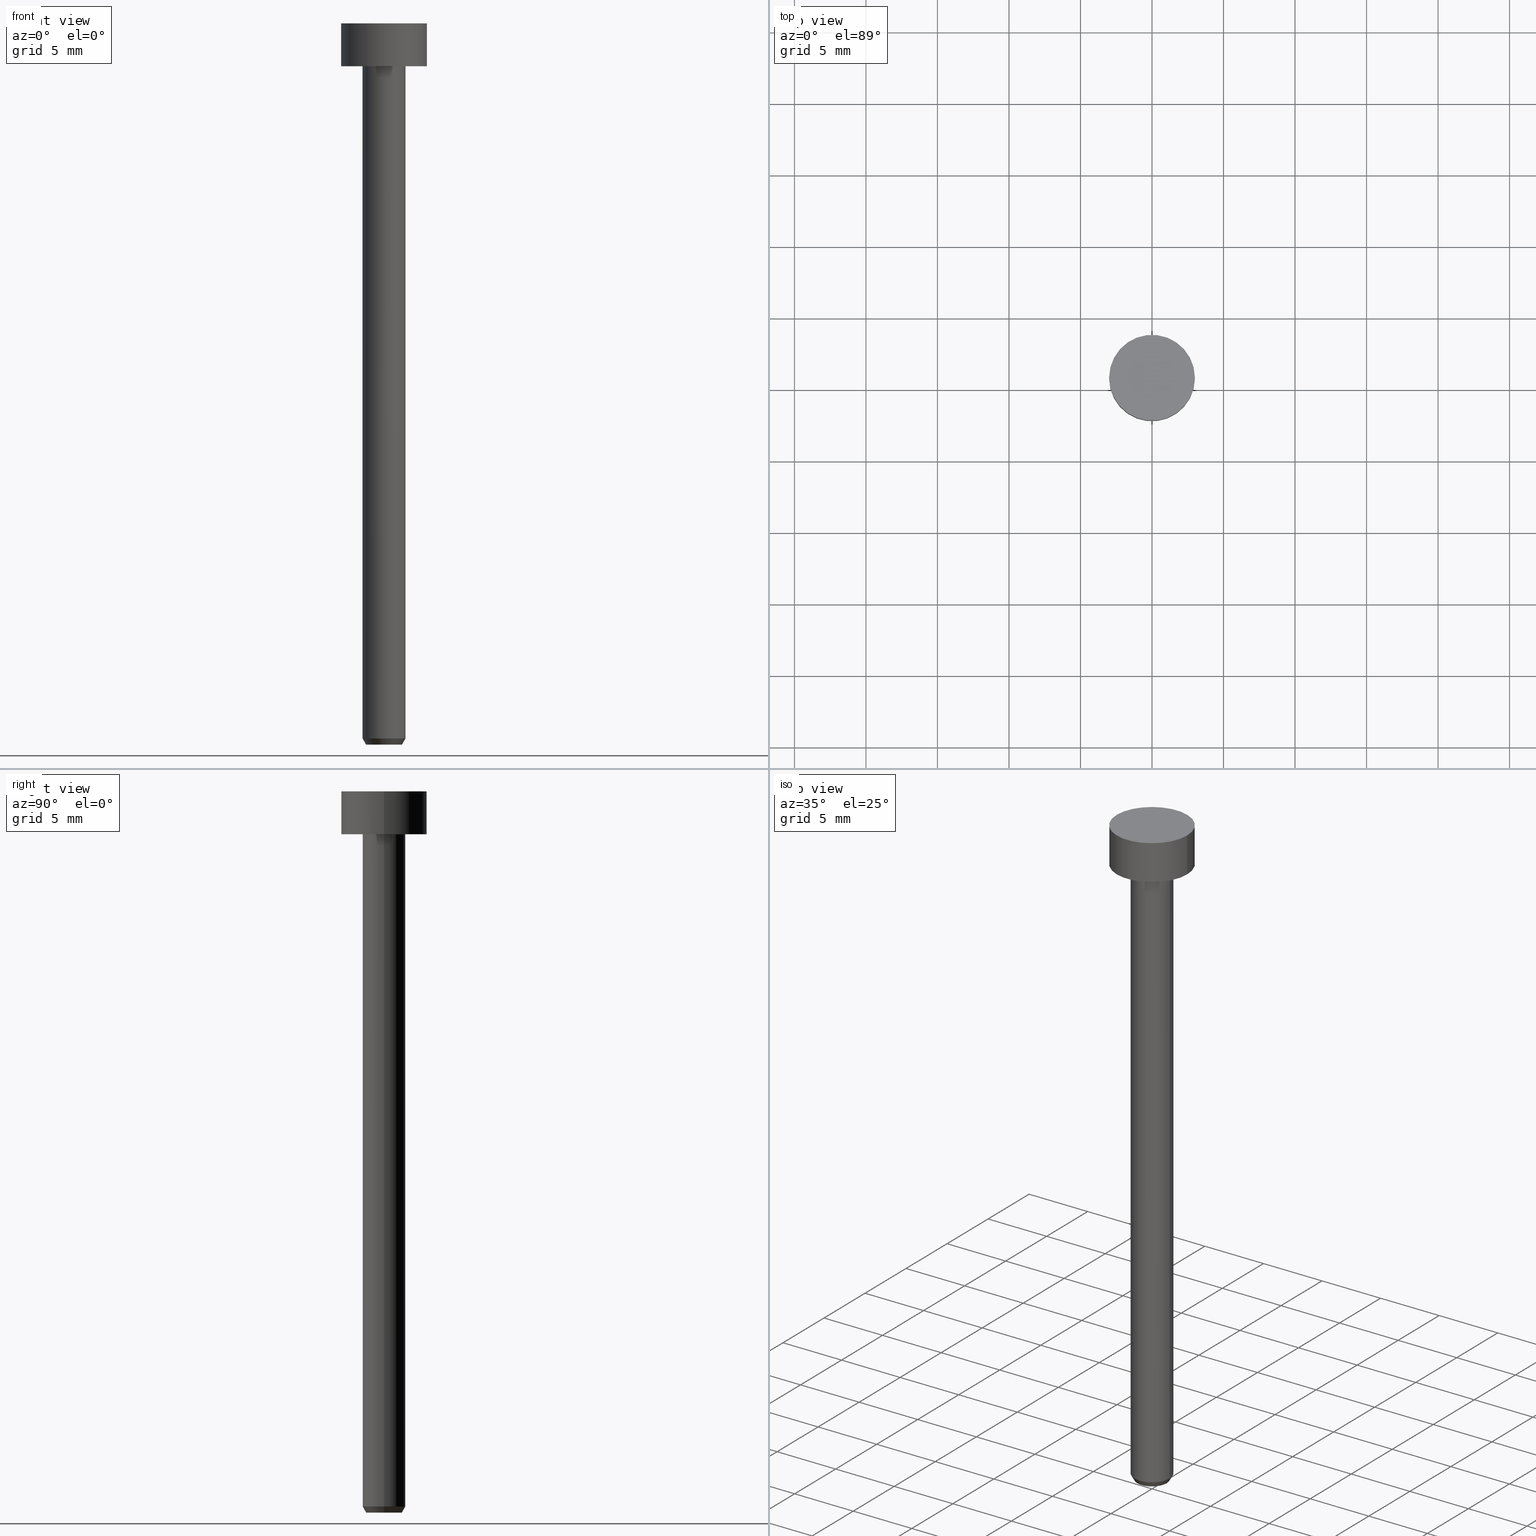
[diagram: canonical four-view strip — front | top / right | iso, engineering-drawing reading convention]
A machine part, canonical four-view strip (front | top / right | iso — engineering-drawing reading convention). The complete STEP part file that produces these views, byte-faithful:
ISO-10303-21;
HEADER;
FILE_DESCRIPTION (( 'STEP AP203' ),
    '1' );
FILE_NAME ('9e2e.STEP',
    '2023-02-13T08:59:26',
    ( '' ),
    ( '' ),
    'SwSTEP 2.0',
    'SolidWorks 2019',
    '' );
FILE_SCHEMA (( 'CONFIG_CONTROL_DESIGN' ));
ENDSEC;

DATA;
#1 = AXIS2_PLACEMENT_3D ( 'NONE', #58, #351, #116 ) ;
#2 = DIRECTION ( 'NONE',  ( -0.000000000000000000, -0.000000000000000000, 1.000000000000000000 ) ) ;
#3 = ORIENTED_EDGE ( 'NONE', *, *, #63, .T. ) ;
#4 = CARTESIAN_POINT ( 'NONE',  ( 0.000000000000000000, 0.000000000000000000, -50.00000000000000000 ) ) ;
#5 = DIRECTION ( 'NONE',  ( 1.000000000000000000, 0.000000000000000000, 0.000000000000000000 ) ) ;
#6 = PRODUCT_RELATED_PRODUCT_CATEGORY ( 'detail', '', ( #114 ) ) ;
#7 = CARTESIAN_POINT ( 'NONE',  ( -1.500000000000000000, 1.836970198721029934E-16, -3.000000000000000444 ) ) ;
#8 = CARTESIAN_POINT ( 'NONE',  ( -1.250000000000000000, 1.530808498934191571E-16, 0.000000000000000000 ) ) ;
#9 = CIRCLE ( 'NONE', #318, 1.500000000000000000 ) ;
#10 = CARTESIAN_POINT ( 'NONE',  ( 1.250000000000000000, 0.000000000000000000, -50.43301270189221697 ) ) ;
#11 = CC_DESIGN_PERSON_AND_ORGANIZATION_ASSIGNMENT ( #80, #54, ( #127 ) ) ;
#12 = ORIENTED_EDGE ( 'NONE', *, *, #352, .F. ) ;
#13 = CARTESIAN_POINT ( 'NONE',  ( -1.500000000000000000, 1.836970198721029934E-16, -50.00000000000000000 ) ) ;
#14 = CARTESIAN_POINT ( 'NONE',  ( 0.000000000000000000, 0.000000000000000000, 0.000000000000000000 ) ) ;
#15 = DIRECTION ( 'NONE',  ( 1.000000000000000000, 0.000000000000000000, 0.000000000000000000 ) ) ;
#16 = EDGE_LOOP ( 'NONE', ( #183, #210 ) ) ;
#17 = PERSON ( 'NEUR�EN�', 'NEUR�EN�', 'NEUR�EN�', ('NEUR�EN�'), ('NEUR�EN�'), ('NEUR�EN�') ) ;
#18 = CALENDAR_DATE ( 2023, 13, 2 ) ;
#19 = EDGE_CURVE ( 'NONE', #35, #319, #253, .T. ) ;
#20 = ORIENTED_EDGE ( 'NONE', *, *, #96, .F. ) ;
#21 = EDGE_LOOP ( 'NONE', ( #275, #3 ) ) ;
#22 = ORIENTED_EDGE ( 'NONE', *, *, #147, .T. ) ;
#23 = PERSON_AND_ORGANIZATION ( #17, #26 ) ;
#24 = DIRECTION ( 'NONE',  ( -0.000000000000000000, -0.000000000000000000, 1.000000000000000000 ) ) ;
#25 = PERSON_AND_ORGANIZATION_ROLE ( 'classification_officer' ) ;
#26 = ORGANIZATION ( 'NEUR�EN�', 'NEUR�EN�', '' ) ;
#27 = VECTOR ( 'NONE', #151, 1000.000000000000000 ) ;
#28 = ADVANCED_FACE ( 'NONE', ( #243 ), #300, .T. ) ;
#29 = CIRCLE ( 'NONE', #283, 3.000000000000000000 ) ;
#30 = PRODUCT_DEFINITION_SHAPE ( 'NONE', 'NONE',  #135 ) ;
#31 = EDGE_LOOP ( 'NONE', ( #204, #76, #20, #320 ) ) ;
#32 = AXIS2_PLACEMENT_3D ( 'NONE', #191, #46, #295 ) ;
#33 = PLANE ( 'NONE',  #95 ) ;
#34 = DIRECTION ( 'NONE',  ( -0.000000000000000000, -0.000000000000000000, 1.000000000000000000 ) ) ;
#35 = VERTEX_POINT ( 'NONE', #112 ) ;
#36 = DIRECTION ( 'NONE',  ( -1.000000000000000000, 0.000000000000000000, -0.000000000000000000 ) ) ;
#37 = FACE_OUTER_BOUND ( 'NONE', #206, .T. ) ;
#38 = VECTOR ( 'NONE', #207, 1000.000000000000000 ) ;
#39 = FACE_OUTER_BOUND ( 'NONE', #91, .T. ) ;
#40 =( LENGTH_UNIT ( ) NAMED_UNIT ( * ) SI_UNIT ( .MILLI., .METRE. ) );
#41 = AXIS2_PLACEMENT_3D ( 'NONE', #288, #241, #182 ) ;
#42 = EDGE_CURVE ( 'NONE', #319, #217, #195, .T. ) ;
#43 = CALENDAR_DATE ( 2023, 13, 2 ) ;
#44 = VERTEX_POINT ( 'NONE', #110 ) ;
#45 = CIRCLE ( 'NONE', #355, 3.000000000000000000 ) ;
#46 = DIRECTION ( 'NONE',  ( -0.000000000000000000, -0.000000000000000000, 1.000000000000000000 ) ) ;
#47 = EDGE_LOOP ( 'NONE', ( #52, #79, #307, #48 ) ) ;
#48 = ORIENTED_EDGE ( 'NONE', *, *, #155, .F. ) ;
#49 = APPROVAL_ROLE ( '' ) ;
#50 = DIRECTION ( 'NONE',  ( 1.000000000000000000, 0.000000000000000000, 0.000000000000000000 ) ) ;
#51 = DIRECTION ( 'NONE',  ( -0.000000000000000000, -0.000000000000000000, 1.000000000000000000 ) ) ;
#52 = ORIENTED_EDGE ( 'NONE', *, *, #19, .T. ) ;
#53 = APPROVAL_STATUS ( 'not_yet_approved' ) ;
#54 = PERSON_AND_ORGANIZATION_ROLE ( 'creator' ) ;
#55 = CARTESIAN_POINT ( 'NONE',  ( 0.000000000000000000, 0.000000000000000000, -3.000000000000000444 ) ) ;
#56 = EDGE_CURVE ( 'NONE', #292, #132, #187, .T. ) ;
#57 = CC_DESIGN_PERSON_AND_ORGANIZATION_ASSIGNMENT ( #99, #25, ( #328 ) ) ;
#58 = CARTESIAN_POINT ( 'NONE',  ( 0.000000000000000000, 0.000000000000000000, 0.000000000000000000 ) ) ;
#59 = CARTESIAN_POINT ( 'NONE',  ( -3.000000000000000000, 3.673940397442059868E-16, 0.000000000000000000 ) ) ;
#60 = CIRCLE ( 'NONE', #184, 1.250000000000000000 ) ;
#61 = CIRCLE ( 'NONE', #134, 1.250000000000000000 ) ;
#62 = CONICAL_SURFACE ( 'NONE', #299, 1.500000000000000000, 0.5235987755983037006 ) ;
#63 = EDGE_CURVE ( 'NONE', #322, #298, #9, .T. ) ;
#64 = CARTESIAN_POINT ( 'NONE',  ( -1.500000000000000000, 1.836970198721029934E-16, -50.00000000000000000 ) ) ;
#65 = FACE_OUTER_BOUND ( 'NONE', #175, .T. ) ;
#66 = ORIENTED_EDGE ( 'NONE', *, *, #119, .T. ) ;
#67 = DIRECTION ( 'NONE',  ( -0.000000000000000000, -0.000000000000000000, 1.000000000000000000 ) ) ;
#68 = DIRECTION ( 'NONE',  ( 1.000000000000000000, 0.000000000000000000, 0.000000000000000000 ) ) ;
#69 = VECTOR ( 'NONE', #272, 1000.000000000000000 ) ;
#70 = DIRECTION ( 'NONE',  ( -0.000000000000000000, -0.000000000000000000, 1.000000000000000000 ) ) ;
#71 = ORIENTED_EDGE ( 'NONE', *, *, #155, .T. ) ;
#72 = FACE_OUTER_BOUND ( 'NONE', #16, .T. ) ;
#73 = ORIENTED_EDGE ( 'NONE', *, *, #96, .T. ) ;
#74 = CARTESIAN_POINT ( 'NONE',  ( 0.000000000000000000, 0.000000000000000000, -1.836970198721029934E-16 ) ) ;
#75 = CARTESIAN_POINT ( 'NONE',  ( 0.000000000000000000, 0.000000000000000000, -50.00000000000000000 ) ) ;
#76 = ORIENTED_EDGE ( 'NONE', *, *, #278, .T. ) ;
#77 = CC_DESIGN_APPROVAL ( #354, ( #135 ) ) ;
#78 = DATE_AND_TIME ( #215, #168 ) ;
#79 = ORIENTED_EDGE ( 'NONE', *, *, #42, .T. ) ;
#80 = PERSON_AND_ORGANIZATION ( #17, #26 ) ;
#81 = DIRECTION ( 'NONE',  ( 0.000000000000000000, 0.000000000000000000, 1.000000000000000000 ) ) ;
#82 = CC_DESIGN_APPROVAL ( #296, ( #328 ) ) ;
#83 = DIRECTION ( 'NONE',  ( 1.000000000000000000, 0.000000000000000000, 0.000000000000000000 ) ) ;
#84 = CC_DESIGN_PERSON_AND_ORGANIZATION_ASSIGNMENT ( #23, #133, ( #114 ) ) ;
#85 = ORIENTED_EDGE ( 'NONE', *, *, #56, .F. ) ;
#86 = DIRECTION ( 'NONE',  ( 0.000000000000000000, 0.000000000000000000, -1.000000000000000000 ) ) ;
#87 = AXIS2_PLACEMENT_3D ( 'NONE', #4, #176, #277 ) ;
#88 = ADVANCED_FACE ( 'NONE', ( #193 ), #94, .F. ) ;
#89 = ORIENTED_EDGE ( 'NONE', *, *, #340, .F. ) ;
#90 = LINE ( 'NONE', #13, #276 ) ;
#91 = EDGE_LOOP ( 'NONE', ( #73, #200, #188, #12 ) ) ;
#92 = DIRECTION ( 'NONE',  ( -1.000000000000000000, 0.000000000000000000, -0.000000000000000000 ) ) ;
#93 = CARTESIAN_POINT ( 'NONE',  ( 1.500000000000000000, 0.000000000000000000, 0.000000000000000000 ) ) ;
#94 = CYLINDRICAL_SURFACE ( 'NONE', #258, 1.250000000000000000 ) ;
#95 = AXIS2_PLACEMENT_3D ( 'NONE', #74, #234, #124 ) ;
#96 = EDGE_CURVE ( 'NONE', #132, #292, #219, .T. ) ;
#97 = DATE_TIME_ROLE ( 'creation_date' ) ;
#98 = DIRECTION ( 'NONE',  ( 0.5000000000000041078, 0.000000000000000000, 0.8660254037844362651 ) ) ;
#99 = PERSON_AND_ORGANIZATION ( #17, #26 ) ;
#100 = CC_DESIGN_DATE_AND_TIME_ASSIGNMENT ( #153, #97, ( #135 ) ) ;
#101 = AXIS2_PLACEMENT_3D ( 'NONE', #171, #255, #5 ) ;
#102 = DIRECTION ( 'NONE',  ( -0.000000000000000000, -0.000000000000000000, 1.000000000000000000 ) ) ;
#103 = VERTEX_POINT ( 'NONE', #335 ) ;
#104 = ADVANCED_FACE ( 'NONE', ( #163 ), #62, .T. ) ;
#105 = UNCERTAINTY_MEASURE_WITH_UNIT (LENGTH_MEASURE( 1.000000000000000082E-05 ), #40, 'distance_accuracy_value', 'NONE');
#106 = CARTESIAN_POINT ( 'NONE',  ( 3.000000000000000000, 0.000000000000000000, 0.000000000000000000 ) ) ;
#107 = DIRECTION ( 'NONE',  ( 1.000000000000000000, 0.000000000000000000, 0.000000000000000000 ) ) ;
#108 = APPROVAL ( #242, 'NEUR�EN�' ) ;
#109 = APPLICATION_PROTOCOL_DEFINITION ( 'international standard', 'config_control_design', 1994, #249 ) ;
#110 = CARTESIAN_POINT ( 'NONE',  ( 3.000000000000000000, 0.000000000000000000, -3.673940397442059868E-16 ) ) ;
#111 = EDGE_CURVE ( 'NONE', #157, #103, #350, .T. ) ;
#112 = CARTESIAN_POINT ( 'NONE',  ( 3.000000000000000000, 0.000000000000000000, -3.000000000000000444 ) ) ;
#113 = AXIS2_PLACEMENT_3D ( 'NONE', #149, #203, #230 ) ;
#114 = PRODUCT ( '9e2e', '9e2e', '', ( #218 ) ) ;
#115 = CARTESIAN_POINT ( 'NONE',  ( 0.000000000000000000, 0.000000000000000000, -3.673940397442059868E-16 ) ) ;
#116 = DIRECTION ( 'NONE',  ( 1.000000000000000000, 0.000000000000000000, 0.000000000000000000 ) ) ;
#117 = VECTOR ( 'NONE', #337, 1000.000000000000000 ) ;
#118 = ORIENTED_EDGE ( 'NONE', *, *, #165, .F. ) ;
#119 = EDGE_CURVE ( 'NONE', #103, #157, #143, .T. ) ;
#120 = PLANE ( 'NONE',  #330 ) ;
#121 = DIRECTION ( 'NONE',  ( 1.000000000000000000, 0.000000000000000000, 0.000000000000000000 ) ) ;
#122 = CARTESIAN_POINT ( 'NONE',  ( 1.500000000000000000, 0.000000000000000000, -3.000000000000000444 ) ) ;
#123 = CARTESIAN_POINT ( 'NONE',  ( 0.000000000000000000, 0.000000000000000000, -50.00000000000000000 ) ) ;
#124 = DIRECTION ( 'NONE',  ( 1.000000000000000000, 0.000000000000000000, 0.000000000000000000 ) ) ;
#125 = APPROVAL_ROLE ( '' ) ;
#126 = LINE ( 'NONE', #343, #251 ) ;
#127 = PRODUCT_DEFINITION_FORMATION_WITH_SPECIFIED_SOURCE ( 'LIBOVOLN�', '', #114, .NOT_KNOWN. ) ;
#128 = CC_DESIGN_PERSON_AND_ORGANIZATION_ASSIGNMENT ( #186, #341, ( #135 ) ) ;
#129 = DATE_AND_TIME ( #18, #273 ) ;
#130 = CARTESIAN_POINT ( 'NONE',  ( 1.250000000000000000, 0.000000000000000000, 0.000000000000000000 ) ) ;
#131 = COORDINATED_UNIVERSAL_TIME_OFFSET ( 1, 0, .AHEAD. ) ;
#132 = VERTEX_POINT ( 'NONE', #159 ) ;
#133 = PERSON_AND_ORGANIZATION_ROLE ( 'design_owner' ) ;
#134 = AXIS2_PLACEMENT_3D ( 'NONE', #156, #24, #50 ) ;
#135 = PRODUCT_DEFINITION ( 'NEZN�M�', '', #127, #326 ) ;
#136 = COORDINATED_UNIVERSAL_TIME_OFFSET ( 1, 0, .AHEAD. ) ;
#137 = DIRECTION ( 'NONE',  ( 1.000000000000000000, 0.000000000000000000, 0.000000000000000000 ) ) ;
#138 = ORIENTED_EDGE ( 'NONE', *, *, #150, .T. ) ;
#139 = AXIS2_PLACEMENT_3D ( 'NONE', #321, #81, #178 ) ;
#140 = VECTOR ( 'NONE', #144, 1000.000000000000000 ) ;
#141 = EDGE_LOOP ( 'NONE', ( #152, #310 ) ) ;
#142 = CYLINDRICAL_SURFACE ( 'NONE', #246, 3.000000000000000000 ) ;
#143 = CIRCLE ( 'NONE', #228, 1.250000000000000000 ) ;
#144 = DIRECTION ( 'NONE',  ( -0.000000000000000000, -0.000000000000000000, 1.000000000000000000 ) ) ;
#145 = EDGE_LOOP ( 'NONE', ( #293, #313, #220, #285 ) ) ;
#146 = DIRECTION ( 'NONE',  ( 1.000000000000000000, 0.000000000000000000, 0.000000000000000000 ) ) ;
#147 = EDGE_CURVE ( 'NONE', #179, #132, #126, .T. ) ;
#148 = CYLINDRICAL_SURFACE ( 'NONE', #250, 1.250000000000000000 ) ;
#149 = CARTESIAN_POINT ( 'NONE',  ( 0.000000000000000000, 0.000000000000000000, -3.000000000000000444 ) ) ;
#150 = EDGE_CURVE ( 'NONE', #172, #179, #61, .T. ) ;
#151 = DIRECTION ( 'NONE',  ( -0.000000000000000000, -0.000000000000000000, 1.000000000000000000 ) ) ;
#152 = ORIENTED_EDGE ( 'NONE', *, *, #111, .F. ) ;
#153 = DATE_AND_TIME ( #158, #154 ) ;
#154 = LOCAL_TIME ( 9, 59, 26.00000000000000000, #286 ) ;
#155 = EDGE_CURVE ( 'NONE', #35, #44, #264, .T. ) ;
#156 = CARTESIAN_POINT ( 'NONE',  ( 0.000000000000000000, 0.000000000000000000, -50.43301270189221697 ) ) ;
#157 = VERTEX_POINT ( 'NONE', #287 ) ;
#158 = CALENDAR_DATE ( 2023, 13, 2 ) ;
#159 = CARTESIAN_POINT ( 'NONE',  ( 1.500000000000000000, 0.000000000000000000, -50.00000000000000000 ) ) ;
#160 = CARTESIAN_POINT ( 'NONE',  ( 0.000000000000000000, 0.000000000000000000, -3.673940397442059868E-16 ) ) ;
#161 = PERSON_AND_ORGANIZATION_ROLE ( 'design_supplier' ) ;
#162 = APPROVAL_DATE_TIME ( #294, #108 ) ;
#163 = FACE_OUTER_BOUND ( 'NONE', #31, .T. ) ;
#164 = AXIS2_PLACEMENT_3D ( 'NONE', #308, #314, #334 ) ;
#165 = EDGE_CURVE ( 'NONE', #179, #157, #281, .T. ) ;
#166 = CARTESIAN_POINT ( 'NONE',  ( 0.000000000000000000, 0.000000000000000000, 0.000000000000000000 ) ) ;
#167 = CONICAL_SURFACE ( 'NONE', #87, 1.500000000000000000, 0.5235987755983037006 ) ;
#168 = LOCAL_TIME ( 9, 59, 26.00000000000000000, #323 ) ;
#169 = ORIENTED_EDGE ( 'NONE', *, *, #199, .F. ) ;
#170 = FACE_OUTER_BOUND ( 'NONE', #194, .T. ) ;
#171 = CARTESIAN_POINT ( 'NONE',  ( 0.000000000000000000, 0.000000000000000000, -50.00000000000000000 ) ) ;
#172 = VERTEX_POINT ( 'NONE', #232 ) ;
#173 = DIRECTION ( 'NONE',  ( -0.000000000000000000, -0.000000000000000000, 1.000000000000000000 ) ) ;
#174 = FACE_BOUND ( 'NONE', #21, .T. ) ;
#175 = EDGE_LOOP ( 'NONE', ( #216, #259, #66, #118 ) ) ;
#176 = DIRECTION ( 'NONE',  ( -0.000000000000000000, -0.000000000000000000, 1.000000000000000000 ) ) ;
#177 = ORIENTED_EDGE ( 'NONE', *, *, #111, .T. ) ;
#178 = DIRECTION ( 'NONE',  ( 1.000000000000000000, 0.000000000000000000, 0.000000000000000000 ) ) ;
#179 = VERTEX_POINT ( 'NONE', #10 ) ;
#180 = ORIENTED_EDGE ( 'NONE', *, *, #236, .T. ) ;
#181 = PERSON_AND_ORGANIZATION ( #17, #26 ) ;
#182 = DIRECTION ( 'NONE',  ( 1.000000000000000000, 0.000000000000000000, 0.000000000000000000 ) ) ;
#183 = ORIENTED_EDGE ( 'NONE', *, *, #196, .T. ) ;
#184 = AXIS2_PLACEMENT_3D ( 'NONE', #205, #173, #146 ) ;
#185 = EDGE_LOOP ( 'NONE', ( #89, #304, #289, #177 ) ) ;
#186 = PERSON_AND_ORGANIZATION ( #17, #26 ) ;
#187 = CIRCLE ( 'NONE', #32, 1.500000000000000000 ) ;
#188 = ORIENTED_EDGE ( 'NONE', *, *, #301, .F. ) ;
#189 = DIRECTION ( 'NONE',  ( -0.000000000000000000, -0.000000000000000000, 1.000000000000000000 ) ) ;
#190 = APPROVAL_STATUS ( 'not_yet_approved' ) ;
#191 = CARTESIAN_POINT ( 'NONE',  ( 0.000000000000000000, 0.000000000000000000, -50.00000000000000000 ) ) ;
#192 = VECTOR ( 'NONE', #235, 1000.000000000000000 ) ;
#193 = FACE_OUTER_BOUND ( 'NONE', #185, .T. ) ;
#194 = EDGE_LOOP ( 'NONE', ( #346, #229 ) ) ;
#195 = LINE ( 'NONE', #59, #69 ) ;
#196 = EDGE_CURVE ( 'NONE', #44, #217, #261, .T. ) ;
#197 = DIRECTION ( 'NONE',  ( -0.000000000000000000, -0.000000000000000000, 1.000000000000000000 ) ) ;
#198 = DIRECTION ( 'NONE',  ( 1.000000000000000000, 0.000000000000000000, 0.000000000000000000 ) ) ;
#199 = EDGE_CURVE ( 'NONE', #217, #44, #45, .T. ) ;
#200 = ORIENTED_EDGE ( 'NONE', *, *, #244, .T. ) ;
#201 = CYLINDRICAL_SURFACE ( 'NONE', #164, 1.500000000000000000 ) ;
#202 = APPROVAL_PERSON_ORGANIZATION ( #181, #354, #49 ) ;
#203 = DIRECTION ( 'NONE',  ( -0.000000000000000000, -0.000000000000000000, 1.000000000000000000 ) ) ;
#204 = ORIENTED_EDGE ( 'NONE', *, *, #302, .T. ) ;
#205 = CARTESIAN_POINT ( 'NONE',  ( 0.000000000000000000, 0.000000000000000000, -50.43301270189221697 ) ) ;
#206 = EDGE_LOOP ( 'NONE', ( #233, #138, #22, #85 ) ) ;
#207 = DIRECTION ( 'NONE',  ( -0.000000000000000000, -0.000000000000000000, 1.000000000000000000 ) ) ;
#208 = EDGE_LOOP ( 'NONE', ( #225, #180, #71, #169 ) ) ;
#209 = COORDINATED_UNIVERSAL_TIME_OFFSET ( 1, 0, .AHEAD. ) ;
#210 = ORIENTED_EDGE ( 'NONE', *, *, #199, .T. ) ;
#211 = SHAPE_DEFINITION_REPRESENTATION ( #30, #339 ) ;
#212 = APPLICATION_PROTOCOL_DEFINITION ( 'international standard', 'config_control_design', 1994, #267 ) ;
#213 = CC_DESIGN_APPROVAL ( #108, ( #127 ) ) ;
#214 = ADVANCED_FACE ( 'NONE', ( #65 ), #148, .F. ) ;
#215 = CALENDAR_DATE ( 2023, 13, 2 ) ;
#216 = ORIENTED_EDGE ( 'NONE', *, *, #150, .F. ) ;
#217 = VERTEX_POINT ( 'NONE', #247 ) ;
#218 = MECHANICAL_CONTEXT ( 'NONE', #249, 'mechanical' ) ;
#219 = CIRCLE ( 'NONE', #101, 1.500000000000000000 ) ;
#220 = ORIENTED_EDGE ( 'NONE', *, *, #352, .T. ) ;
#221 = DIRECTION ( 'NONE',  ( 1.000000000000000000, 0.000000000000000000, 0.000000000000000000 ) ) ;
#222 = DIRECTION ( 'NONE',  ( -0.000000000000000000, -0.000000000000000000, 1.000000000000000000 ) ) ;
#223 = ADVANCED_FACE ( 'NONE', ( #248 ), #329, .T. ) ;
#224 = AXIS2_PLACEMENT_3D ( 'NONE', #123, #86, #92 ) ;
#225 = ORIENTED_EDGE ( 'NONE', *, *, #42, .F. ) ;
#226 = DIRECTION ( 'NONE',  ( 1.000000000000000000, 0.000000000000000000, 0.000000000000000000 ) ) ;
#227 = ADVANCED_FACE ( 'NONE', ( #72 ), #33, .T. ) ;
#228 = AXIS2_PLACEMENT_3D ( 'NONE', #291, #51, #15 ) ;
#229 = ORIENTED_EDGE ( 'NONE', *, *, #236, .F. ) ;
#230 = DIRECTION ( 'NONE',  ( 1.000000000000000000, 0.000000000000000000, 0.000000000000000000 ) ) ;
#231 = AXIS2_PLACEMENT_3D ( 'NONE', #115, #197, #107 ) ;
#232 = CARTESIAN_POINT ( 'NONE',  ( -1.250000000000000000, 1.530808498934191571E-16, -50.43301270189221697 ) ) ;
#233 = ORIENTED_EDGE ( 'NONE', *, *, #278, .F. ) ;
#234 = DIRECTION ( 'NONE',  ( 0.000000000000000000, -0.000000000000000000, 1.000000000000000000 ) ) ;
#235 = DIRECTION ( 'NONE',  ( -0.000000000000000000, -0.000000000000000000, 1.000000000000000000 ) ) ;
#236 = EDGE_CURVE ( 'NONE', #319, #35, #29, .T. ) ;
#237 = ADVANCED_FACE ( 'NONE', ( #174, #170 ), #120, .T. ) ;
#238 = DIRECTION ( 'NONE',  ( -0.000000000000000000, -0.000000000000000000, 1.000000000000000000 ) ) ;
#239 = LOCAL_TIME ( 9, 59, 26.00000000000000000, #136 ) ;
#240 = CALENDAR_DATE ( 2023, 13, 2 ) ;
#241 = DIRECTION ( 'NONE',  ( -0.000000000000000000, -0.000000000000000000, 1.000000000000000000 ) ) ;
#242 = APPROVAL_STATUS ( 'not_yet_approved' ) ;
#243 = FACE_OUTER_BOUND ( 'NONE', #145, .T. ) ;
#244 = EDGE_CURVE ( 'NONE', #292, #322, #305, .T. ) ;
#245 = CC_DESIGN_DATE_AND_TIME_ASSIGNMENT ( #347, #349, ( #328 ) ) ;
#246 = AXIS2_PLACEMENT_3D ( 'NONE', #166, #2, #226 ) ;
#247 = CARTESIAN_POINT ( 'NONE',  ( -3.000000000000000000, 3.673940397442059868E-16, -3.673940397442059868E-16 ) ) ;
#248 = FACE_OUTER_BOUND ( 'NONE', #208, .T. ) ;
#249 = APPLICATION_CONTEXT ( 'configuration controlled 3d designs of mechanical parts and assemblies' ) ;
#250 = AXIS2_PLACEMENT_3D ( 'NONE', #271, #189, #137 ) ;
#251 = VECTOR ( 'NONE', #98, 1000.000000000000114 ) ;
#252 = DIRECTION ( 'NONE',  ( -0.5000000000000041078, 6.123233995736817805E-17, 0.8660254037844362651 ) ) ;
#253 = CIRCLE ( 'NONE', #312, 3.000000000000000000 ) ;
#254 = CARTESIAN_POINT ( 'NONE',  ( -1.500000000000000000, 1.836970198721029934E-16, 0.000000000000000000 ) ) ;
#255 = DIRECTION ( 'NONE',  ( -0.000000000000000000, -0.000000000000000000, 1.000000000000000000 ) ) ;
#256 = CARTESIAN_POINT ( 'NONE',  ( -3.000000000000000000, 3.673940397442059868E-16, -3.000000000000000444 ) ) ;
#257 = LINE ( 'NONE', #8, #192 ) ;
#258 = AXIS2_PLACEMENT_3D ( 'NONE', #14, #238, #68 ) ;
#259 = ORIENTED_EDGE ( 'NONE', *, *, #340, .T. ) ;
#260 = PERSON_AND_ORGANIZATION ( #17, #26 ) ;
#261 = CIRCLE ( 'NONE', #231, 3.000000000000000000 ) ;
#262 = ADVANCED_FACE ( 'NONE', ( #282 ), #142, .T. ) ;
#263 = PERSON_AND_ORGANIZATION ( #17, #26 ) ;
#264 = LINE ( 'NONE', #106, #27 ) ;
#265 = SECURITY_CLASSIFICATION_LEVEL ( 'unclassified' ) ;
#266 = CIRCLE ( 'NONE', #113, 1.500000000000000000 ) ;
#267 = APPLICATION_CONTEXT ( 'configuration controlled 3d designs of mechanical parts and assemblies' ) ;
#268 = APPROVAL_ROLE ( '' ) ;
#269 = DIRECTION ( 'NONE',  ( -0.000000000000000000, -0.000000000000000000, 1.000000000000000000 ) ) ;
#270 = CLOSED_SHELL ( 'NONE', ( #262, #290, #104, #214, #284, #88, #274, #28, #237, #223, #227 ) ) ;
#271 = CARTESIAN_POINT ( 'NONE',  ( 0.000000000000000000, 0.000000000000000000, 0.000000000000000000 ) ) ;
#272 = DIRECTION ( 'NONE',  ( -0.000000000000000000, -0.000000000000000000, 1.000000000000000000 ) ) ;
#273 = LOCAL_TIME ( 9, 59, 26.00000000000000000, #209 ) ;
#274 = ADVANCED_FACE ( 'NONE', ( #37 ), #167, .T. ) ;
#275 = ORIENTED_EDGE ( 'NONE', *, *, #301, .T. ) ;
#276 = VECTOR ( 'NONE', #252, 1000.000000000000114 ) ;
#277 = DIRECTION ( 'NONE',  ( 1.000000000000000000, 0.000000000000000000, 0.000000000000000000 ) ) ;
#278 = EDGE_CURVE ( 'NONE', #172, #292, #90, .T. ) ;
#279 = CARTESIAN_POINT ( 'NONE',  ( 0.000000000000000000, -3.000000000000000000, -3.000000000000000444 ) ) ;
#280 = DIRECTION ( 'NONE',  ( 1.000000000000000000, 0.000000000000000000, 0.000000000000000000 ) ) ;
#281 = LINE ( 'NONE', #130, #117 ) ;
#282 = FACE_OUTER_BOUND ( 'NONE', #47, .T. ) ;
#283 = AXIS2_PLACEMENT_3D ( 'NONE', #332, #67, #198 ) ;
#284 = ADVANCED_FACE ( 'NONE', ( #315 ), #311, .T. ) ;
#285 = ORIENTED_EDGE ( 'NONE', *, *, #63, .F. ) ;
#286 = COORDINATED_UNIVERSAL_TIME_OFFSET ( 1, 0, .AHEAD. ) ;
#287 = CARTESIAN_POINT ( 'NONE',  ( 1.250000000000000000, 0.000000000000000000, -50.00000000000000000 ) ) ;
#288 = CARTESIAN_POINT ( 'NONE',  ( 0.000000000000000000, 0.000000000000000000, -50.00000000000000000 ) ) ;
#289 = ORIENTED_EDGE ( 'NONE', *, *, #165, .T. ) ;
#290 = ADVANCED_FACE ( 'NONE', ( #39 ), #201, .T. ) ;
#291 = CARTESIAN_POINT ( 'NONE',  ( 0.000000000000000000, 0.000000000000000000, -50.00000000000000000 ) ) ;
#292 = VERTEX_POINT ( 'NONE', #64 ) ;
#293 = ORIENTED_EDGE ( 'NONE', *, *, #244, .F. ) ;
#294 = DATE_AND_TIME ( #43, #353 ) ;
#295 = DIRECTION ( 'NONE',  ( 1.000000000000000000, 0.000000000000000000, 0.000000000000000000 ) ) ;
#296 = APPROVAL ( #190, 'NEUR�EN�' ) ;
#297 = CARTESIAN_POINT ( 'NONE',  ( 0.000000000000000000, 0.000000000000000000, -3.000000000000000444 ) ) ;
#298 = VERTEX_POINT ( 'NONE', #122 ) ;
#299 = AXIS2_PLACEMENT_3D ( 'NONE', #75, #102, #316 ) ;
#300 = CYLINDRICAL_SURFACE ( 'NONE', #1, 1.500000000000000000 ) ;
#301 = EDGE_CURVE ( 'NONE', #298, #322, #266, .T. ) ;
#302 = EDGE_CURVE ( 'NONE', #179, #172, #60, .T. ) ;
#303 = CC_DESIGN_PERSON_AND_ORGANIZATION_ASSIGNMENT ( #260, #161, ( #127 ) ) ;
#304 = ORIENTED_EDGE ( 'NONE', *, *, #302, .F. ) ;
#305 = LINE ( 'NONE', #254, #140 ) ;
#306 =( GEOMETRIC_REPRESENTATION_CONTEXT ( 3 ) GLOBAL_UNCERTAINTY_ASSIGNED_CONTEXT ( ( #105 ) ) GLOBAL_UNIT_ASSIGNED_CONTEXT ( ( #40, #331, #345 ) ) REPRESENTATION_CONTEXT ( 'NONE', 'WORKASPACE' ) );
#307 = ORIENTED_EDGE ( 'NONE', *, *, #196, .F. ) ;
#308 = CARTESIAN_POINT ( 'NONE',  ( 0.000000000000000000, 0.000000000000000000, 0.000000000000000000 ) ) ;
#309 = CARTESIAN_POINT ( 'NONE',  ( 0.000000000000000000, 0.000000000000000000, 0.000000000000000000 ) ) ;
#310 = ORIENTED_EDGE ( 'NONE', *, *, #119, .F. ) ;
#311 = PLANE ( 'NONE',  #224 ) ;
#312 = AXIS2_PLACEMENT_3D ( 'NONE', #297, #222, #83 ) ;
#313 = ORIENTED_EDGE ( 'NONE', *, *, #56, .T. ) ;
#314 = DIRECTION ( 'NONE',  ( -0.000000000000000000, -0.000000000000000000, 1.000000000000000000 ) ) ;
#315 = FACE_OUTER_BOUND ( 'NONE', #141, .T. ) ;
#316 = DIRECTION ( 'NONE',  ( 1.000000000000000000, 0.000000000000000000, 0.000000000000000000 ) ) ;
#317 = APPROVAL_DATE_TIME ( #78, #354 ) ;
#318 = AXIS2_PLACEMENT_3D ( 'NONE', #55, #269, #221 ) ;
#319 = VERTEX_POINT ( 'NONE', #256 ) ;
#320 = ORIENTED_EDGE ( 'NONE', *, *, #147, .F. ) ;
#321 = CARTESIAN_POINT ( 'NONE',  ( 0.000000000000000000, 0.000000000000000000, 0.000000000000000000 ) ) ;
#322 = VERTEX_POINT ( 'NONE', #7 ) ;
#323 = COORDINATED_UNIVERSAL_TIME_OFFSET ( 1, 0, .AHEAD. ) ;
#324 = CC_DESIGN_SECURITY_CLASSIFICATION ( #328, ( #127 ) ) ;
#325 = MANIFOLD_SOLID_BREP ( 'Rotovat1', #270 ) ;
#326 = DESIGN_CONTEXT ( 'detailed design', #267, 'design' ) ;
#327 = PERSON_AND_ORGANIZATION ( #17, #26 ) ;
#328 = SECURITY_CLASSIFICATION ( '', '', #265 ) ;
#329 = CYLINDRICAL_SURFACE ( 'NONE', #342, 3.000000000000000000 ) ;
#330 = AXIS2_PLACEMENT_3D ( 'NONE', #279, #336, #36 ) ;
#331 =( NAMED_UNIT ( * ) PLANE_ANGLE_UNIT ( ) SI_UNIT ( $, .RADIAN. ) );
#332 = CARTESIAN_POINT ( 'NONE',  ( 0.000000000000000000, 0.000000000000000000, -3.000000000000000444 ) ) ;
#333 = APPROVAL_PERSON_ORGANIZATION ( #327, #296, #268 ) ;
#334 = DIRECTION ( 'NONE',  ( 1.000000000000000000, 0.000000000000000000, 0.000000000000000000 ) ) ;
#335 = CARTESIAN_POINT ( 'NONE',  ( -1.250000000000000000, 1.530808498934191571E-16, -50.00000000000000000 ) ) ;
#336 = DIRECTION ( 'NONE',  ( 0.000000000000000000, 0.000000000000000000, -1.000000000000000000 ) ) ;
#337 = DIRECTION ( 'NONE',  ( -0.000000000000000000, -0.000000000000000000, 1.000000000000000000 ) ) ;
#338 = LINE ( 'NONE', #93, #38 ) ;
#339 = ADVANCED_BREP_SHAPE_REPRESENTATION ( '9e2e', ( #325, #139 ), #306 ) ;
#340 = EDGE_CURVE ( 'NONE', #172, #103, #257, .T. ) ;
#341 = PERSON_AND_ORGANIZATION_ROLE ( 'creator' ) ;
#342 = AXIS2_PLACEMENT_3D ( 'NONE', #309, #70, #280 ) ;
#343 = CARTESIAN_POINT ( 'NONE',  ( 1.500000000000000000, 0.000000000000000000, -50.00000000000000000 ) ) ;
#344 = APPROVAL_DATE_TIME ( #129, #296 ) ;
#345 =( NAMED_UNIT ( * ) SI_UNIT ( $, .STERADIAN. ) SOLID_ANGLE_UNIT ( ) );
#346 = ORIENTED_EDGE ( 'NONE', *, *, #19, .F. ) ;
#347 = DATE_AND_TIME ( #240, #239 ) ;
#348 = APPROVAL_PERSON_ORGANIZATION ( #263, #108, #125 ) ;
#349 = DATE_TIME_ROLE ( 'classification_date' ) ;
#350 = CIRCLE ( 'NONE', #41, 1.250000000000000000 ) ;
#351 = DIRECTION ( 'NONE',  ( -0.000000000000000000, -0.000000000000000000, 1.000000000000000000 ) ) ;
#352 = EDGE_CURVE ( 'NONE', #132, #298, #338, .T. ) ;
#353 = LOCAL_TIME ( 9, 59, 26.00000000000000000, #131 ) ;
#354 = APPROVAL ( #53, 'NEUR�EN�' ) ;
#355 = AXIS2_PLACEMENT_3D ( 'NONE', #160, #34, #121 ) ;
ENDSEC;
END-ISO-10303-21;
